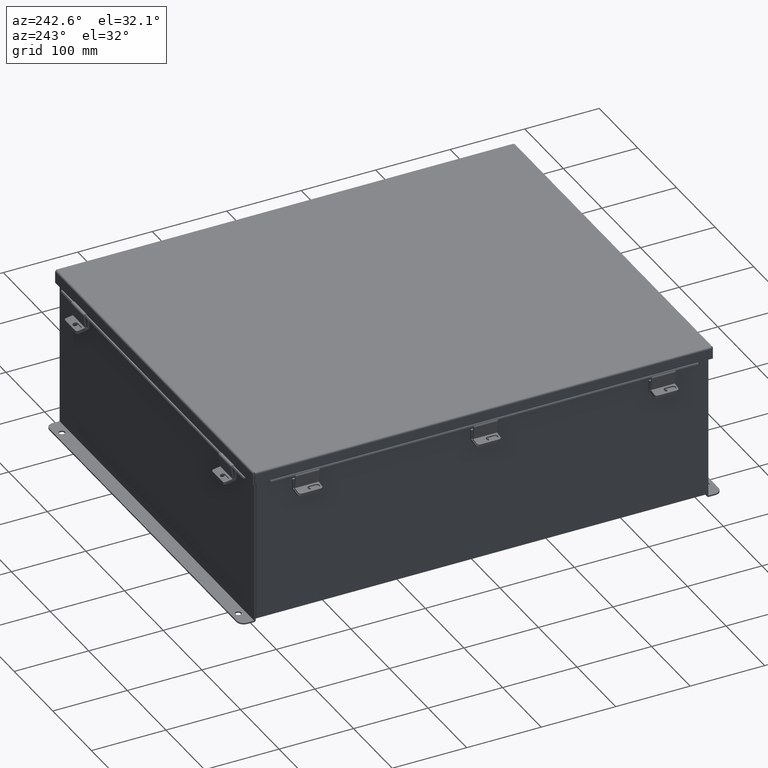
[diagram: clean part render]
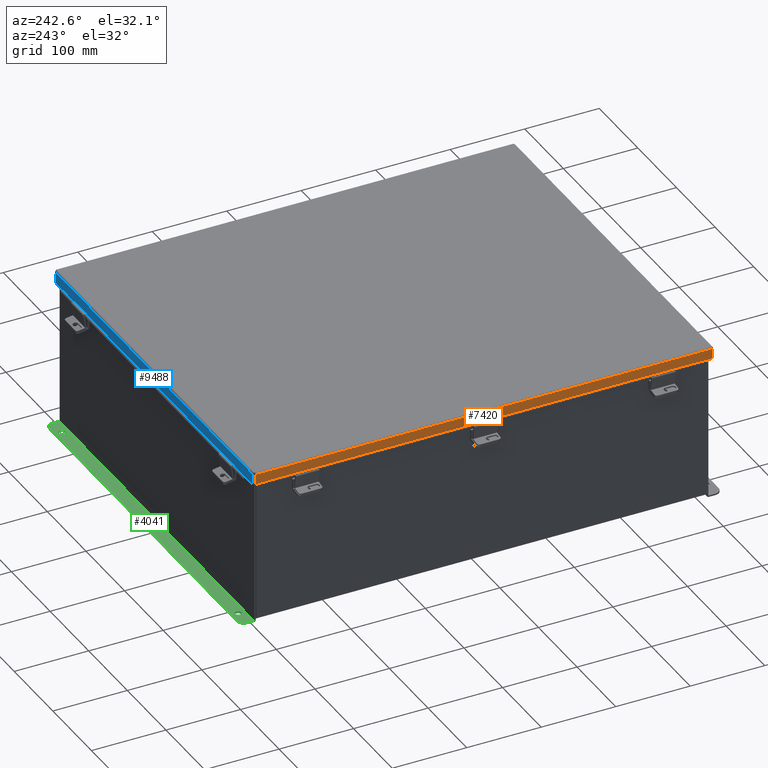
[diagram: same view with three faces highlighted in distinct colors, each labeled with its STEP entity id]
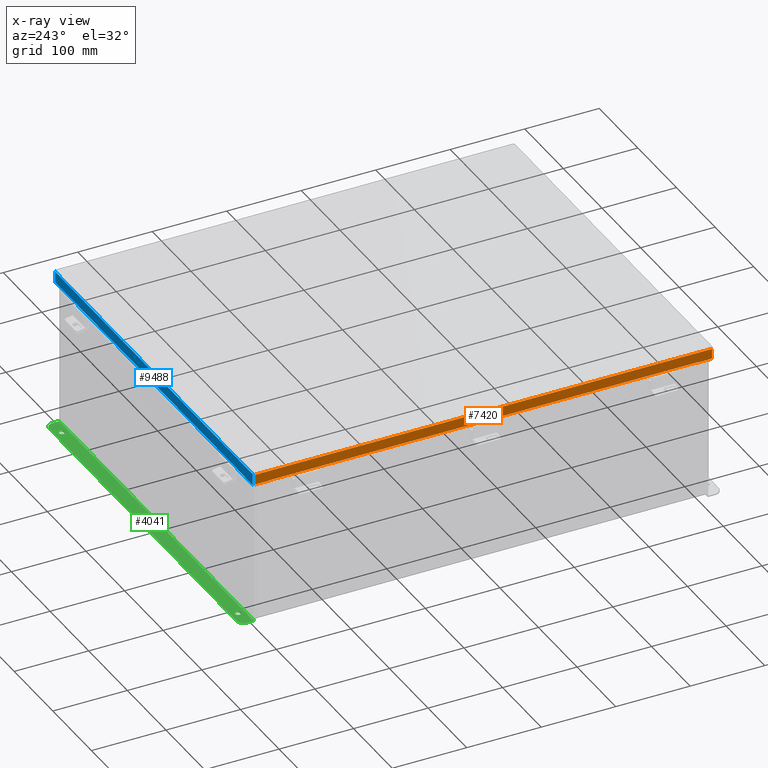
[diagram: x-ray of the same camera — body ghosted, the three highlighted faces saturated]
A machine part, auxiliary view with three faces highlighted in distinct colors.
The next image is the same camera in x-ray (body ghosted, the three faces saturated) — at least one of them is partly hidden behind the body in this view.
Their STEP definitions:

[orange] entity #7420 — the highlighted planar face has unit normal (1, -0, 0).
#184 = LINE ( 'NONE', #1909, #2034 ) ;
#223 = CARTESIAN_POINT ( 'NONE',  ( 10.15625000000004100, -11.32447893218813200, 0.5503000000000010100 ) ) ;
#281 = LINE ( 'NONE', #4419, #2343 ) ;
#532 = CARTESIAN_POINT ( 'NONE',  ( 10.15625000000004100, 11.32447893218813200, 0.5347115427318852600 ) ) ;
#750 = ORIENTED_EDGE ( 'NONE', *, *, #2070, .F. ) ;
#1243 = ORIENTED_EDGE ( 'NONE', *, *, #6297, .F. ) ;
#1266 = VERTEX_POINT ( 'NONE', #223 ) ;
#1651 = CARTESIAN_POINT ( 'NONE',  ( 10.15625000000003600, -12.07447893218813200, 0.01300000000000010700 ) ) ;
#1909 = CARTESIAN_POINT ( 'NONE',  ( 10.15625000000003600, -12.07447893218813200, 0.0000000000000000000 ) ) ;
#2005 = LINE ( 'NONE', #3491, #9948 ) ;
#2034 = VECTOR ( 'NONE', #7275, 39.37007874015748100 ) ;
#2070 = EDGE_CURVE ( 'NONE', #5102, #4244, #184, .T. ) ;
#2339 = ORIENTED_EDGE ( 'NONE', *, *, #3979, .F. ) ;
#2343 = VECTOR ( 'NONE', #8263, 39.37007874015748100 ) ;
#2357 = CARTESIAN_POINT ( 'NONE',  ( 10.15625000000003600, 12.07447893218813200, 0.01300000000000010700 ) ) ;
#2587 = VECTOR ( 'NONE', #5926, 39.37007874015748100 ) ;
#2625 = CARTESIAN_POINT ( 'NONE',  ( 10.15625000000003600, 12.07447893218813400, -4.043135030623109600E-014 ) ) ;
#3063 = VERTEX_POINT ( 'NONE', #3562 ) ;
#3284 = ORIENTED_EDGE ( 'NONE', *, *, #6700, .T. ) ;
#3298 = LINE ( 'NONE', #5876, #5134 ) ;
#3491 = CARTESIAN_POINT ( 'NONE',  ( 10.15625000000003900, -4.268512490100411300E-018, 0.5502999999999999000 ) ) ;
#3558 = VECTOR ( 'NONE', #5715, 39.37007874015748100 ) ;
#3562 = CARTESIAN_POINT ( 'NONE',  ( 10.15625000000004100, -11.32447893218812900, 0.5347115427318766000 ) ) ;
#3675 = PLANE ( 'NONE',  #5912 ) ;
#3702 = CARTESIAN_POINT ( 'NONE',  ( 10.15625000000003900, 0.0000000000000000000, -4.043135030623109600E-014 ) ) ;
#3740 = EDGE_CURVE ( 'NONE', #3903, #9373, #2005, .T. ) ;
#3790 = LINE ( 'NONE', #2625, #3558 ) ;
#3842 = LINE ( 'NONE', #8593, #7608 ) ;
#3857 = EDGE_CURVE ( 'NONE', #3063, #6337, #3298, .T. ) ;
#3903 = VERTEX_POINT ( 'NONE', #8177 ) ;
#3979 = EDGE_CURVE ( 'NONE', #9759, #5102, #6866, .T. ) ;
#4240 = ORIENTED_EDGE ( 'NONE', *, *, #3740, .T. ) ;
#4244 = VERTEX_POINT ( 'NONE', #5549 ) ;
#4388 = FACE_OUTER_BOUND ( 'NONE', #7583, .T. ) ;
#4419 = CARTESIAN_POINT ( 'NONE',  ( 10.15625000000003900, -4.268512490100411300E-018, 0.5502999999999999000 ) ) ;
#4472 = DIRECTION ( 'NONE',  ( 3.971430846686186800E-015, 1.846427556282924000E-029, 1.000000000000000000 ) ) ;
#4648 = ORIENTED_EDGE ( 'NONE', *, *, #3857, .F. ) ;
#4746 = DIRECTION ( 'NONE',  ( -2.803970088048211700E-013, 1.401985044024099800E-013, -1.000000000000000000 ) ) ;
#4827 = VECTOR ( 'NONE', #6712, 39.37007874015748100 ) ;
#5102 = VERTEX_POINT ( 'NONE', #1651 ) ;
#5134 = VECTOR ( 'NONE', #6649, 39.37007874015748100 ) ;
#5200 = CARTESIAN_POINT ( 'NONE',  ( 10.15625000000003600, -12.15624999999999800, 0.01300000000000010700 ) ) ;
#5549 = CARTESIAN_POINT ( 'NONE',  ( 10.15625000000004100, -12.07447893218813200, 0.5503000000000010100 ) ) ;
#5601 = ORIENTED_EDGE ( 'NONE', *, *, #9822, .F. ) ;
#5715 = DIRECTION ( 'NONE',  ( 3.971430846686186800E-015, 1.846427556282924300E-029, 1.000000000000000000 ) ) ;
#5876 = CARTESIAN_POINT ( 'NONE',  ( 10.15625000000004100, -11.32447893218813200, 0.5347115427318766000 ) ) ;
#5912 = AXIS2_PLACEMENT_3D ( 'NONE', #3702, #9085, #4472 ) ;
#5926 = DIRECTION ( 'NONE',  ( 0.0000000000000000000, 1.846427556282924300E-029, 1.000000000000000000 ) ) ;
#5965 = CARTESIAN_POINT ( 'NONE',  ( 10.15625000000004100, 11.32447893218813200, 0.5347115427318852600 ) ) ;
#6055 = ORIENTED_EDGE ( 'NONE', *, *, #6316, .T. ) ;
#6297 = EDGE_CURVE ( 'NONE', #6337, #9373, #8499, .T. ) ;
#6316 = EDGE_CURVE ( 'NONE', #1266, #4244, #281, .T. ) ;
#6337 = VERTEX_POINT ( 'NONE', #5965 ) ;
#6592 = CARTESIAN_POINT ( 'NONE',  ( 10.15625000000004100, 11.32447893218813200, 0.5503000000000085600 ) ) ;
#6649 = DIRECTION ( 'NONE',  ( 3.166671605124525800E-030, 1.000000000000000000, 1.853823127269377700E-029 ) ) ;
#6700 = EDGE_CURVE ( 'NONE', #9759, #3903, #3790, .T. ) ;
#6712 = DIRECTION ( 'NONE',  ( -3.166671605124525800E-030, -1.000000000000000000, -1.853823127269377700E-029 ) ) ;
#6866 = LINE ( 'NONE', #5200, #4827 ) ;
#7275 = DIRECTION ( 'NONE',  ( 3.971430846686186800E-015, 1.846427556282924300E-029, 1.000000000000000000 ) ) ;
#7420 = ADVANCED_FACE ( 'NONE', ( #4388 ), #3675, .F. ) ;
#7583 = EDGE_LOOP ( 'NONE', ( #5601, #6055, #750, #2339, #3284, #4240, #1243, #4648 ) ) ;
#7608 = VECTOR ( 'NONE', #4746, 39.37007874015748100 ) ;
#8177 = CARTESIAN_POINT ( 'NONE',  ( 10.15625000000004100, 12.07447893218813200, 0.5503000000000085600 ) ) ;
#8263 = DIRECTION ( 'NONE',  ( -3.166671605124525800E-030, -1.000000000000000000, -1.853823127269377700E-029 ) ) ;
#8499 = LINE ( 'NONE', #532, #2587 ) ;
#8593 = CARTESIAN_POINT ( 'NONE',  ( 10.15625000000004400, -11.32447893218813200, 0.5502999999999976800 ) ) ;
#8889 = DIRECTION ( 'NONE',  ( -3.166671605124525800E-030, -1.000000000000000000, -1.853823127269377700E-029 ) ) ;
#9085 = DIRECTION ( 'NONE',  ( -1.000000000000000000, -3.214874041279299500E-030, 3.971430846686186800E-015 ) ) ;
#9373 = VERTEX_POINT ( 'NONE', #6592 ) ;
#9759 = VERTEX_POINT ( 'NONE', #2357 ) ;
#9822 = EDGE_CURVE ( 'NONE', #1266, #3063, #3842, .T. ) ;
#9948 = VECTOR ( 'NONE', #8889, 39.37007874015748100 ) ;

[blue] entity #9488 — the highlighted planar face has unit normal (-0, -1, -0).
#115 = CARTESIAN_POINT ( 'NONE',  ( 10.07447893218817100, 12.15625000000000200, 0.6122999999999994000 ) ) ;
#373 = DIRECTION ( 'NONE',  ( 1.000000000000000000, 3.215538059845590000E-030, 3.362274453740340600E-018 ) ) ;
#524 = CARTESIAN_POINT ( 'NONE',  ( 10.15625000000003600, 12.15625000000000000, 0.01300000000000010700 ) ) ;
#722 = EDGE_CURVE ( 'NONE', #2580, #5334, #5359, .T. ) ;
#759 = LINE ( 'NONE', #4518, #2831 ) ;
#820 = VECTOR ( 'NONE', #7493, 39.37007874015748100 ) ;
#1016 = CARTESIAN_POINT ( 'NONE',  ( 9.324478932188171100, 12.15625000000000200, 0.6122999999999994000 ) ) ;
#1065 = LINE ( 'NONE', #524, #4689 ) ;
#1303 = DIRECTION ( 'NONE',  ( 1.000000000000000000, 3.215975411700707400E-030, -0.0000000000000000000 ) ) ;
#1318 = PLANE ( 'NONE',  #3149 ) ;
#1369 = ORIENTED_EDGE ( 'NONE', *, *, #5374, .T. ) ;
#1451 = EDGE_CURVE ( 'NONE', #8285, #1773, #8498, .T. ) ;
#1773 = VERTEX_POINT ( 'NONE', #115 ) ;
#2107 = DIRECTION ( 'NONE',  ( -3.347543324056399800E-030, -1.000000000000000000, 3.569293475308532400E-015 ) ) ;
#2242 = DIRECTION ( 'NONE',  ( -0.0000000000000000000, 3.569293475308532400E-015, 1.000000000000000000 ) ) ;
#2323 = ORIENTED_EDGE ( 'NONE', *, *, #6808, .T. ) ;
#2499 = CARTESIAN_POINT ( 'NONE',  ( 10.07447893218817100, 12.15625000000000000, 0.01300000000000010700 ) ) ;
#2549 = CARTESIAN_POINT ( 'NONE',  ( -9.324478932188164000, 12.15625000000000400, 0.5967115427318815400 ) ) ;
#2580 = VERTEX_POINT ( 'NONE', #4683 ) ;
#2586 = VECTOR ( 'NONE', #2242, 39.37007874015748100 ) ;
#2651 = LINE ( 'NONE', #2896, #820 ) ;
#2831 = VECTOR ( 'NONE', #9908, 39.37007874015748100 ) ;
#2896 = CARTESIAN_POINT ( 'NONE',  ( -2.134256245050205600E-018, 12.15625000000000200, 0.6122999999999994000 ) ) ;
#2986 = VERTEX_POINT ( 'NONE', #8887 ) ;
#3144 = ORIENTED_EDGE ( 'NONE', *, *, #722, .F. ) ;
#3149 = AXIS2_PLACEMENT_3D ( 'NONE', #5933, #2107, #7479 ) ;
#3310 = VECTOR ( 'NONE', #3504, 39.37007874015748100 ) ;
#3322 = DIRECTION ( 'NONE',  ( -7.009925220121077000E-014, -1.401985044024209900E-013, 1.000000000000000000 ) ) ;
#3361 = VECTOR ( 'NONE', #373, 39.37007874015748100 ) ;
#3403 = EDGE_CURVE ( 'NONE', #5334, #2986, #8509, .T. ) ;
#3434 = CARTESIAN_POINT ( 'NONE',  ( 9.324478932188171100, 12.15625000000000400, 0.5967115427318804300 ) ) ;
#3472 = CARTESIAN_POINT ( 'NONE',  ( -10.07447893218816600, 12.15625000000000200, 0.6123000000000005100 ) ) ;
#3504 = DIRECTION ( 'NONE',  ( -1.000000000000000000, -3.215975411700707400E-030, -0.0000000000000000000 ) ) ;
#3769 = VERTEX_POINT ( 'NONE', #8098 ) ;
#3827 = ORIENTED_EDGE ( 'NONE', *, *, #3403, .F. ) ;
#3951 = FACE_OUTER_BOUND ( 'NONE', #6467, .T. ) ;
#4267 = EDGE_CURVE ( 'NONE', #3769, #2580, #4706, .T. ) ;
#4392 = ORIENTED_EDGE ( 'NONE', *, *, #1451, .F. ) ;
#4413 = VECTOR ( 'NONE', #3322, 39.37007874015748100 ) ;
#4518 = CARTESIAN_POINT ( 'NONE',  ( -10.07447893218816600, 12.15625000000000000, -4.370956789862821100E-014 ) ) ;
#4683 = CARTESIAN_POINT ( 'NONE',  ( 9.324478932188171100, 12.15625000000000200, 0.5967115427318804300 ) ) ;
#4689 = VECTOR ( 'NONE', #1303, 39.37007874015748100 ) ;
#4706 = LINE ( 'NONE', #1016, #4956 ) ;
#4929 = VERTEX_POINT ( 'NONE', #5244 ) ;
#4956 = VECTOR ( 'NONE', #6411, 39.37007874015748100 ) ;
#5005 = CARTESIAN_POINT ( 'NONE',  ( -2.134256245050205600E-018, 12.15625000000000200, 0.6122999999999994000 ) ) ;
#5244 = CARTESIAN_POINT ( 'NONE',  ( -10.07447893218816600, 12.15625000000000000, 0.01300000000000010700 ) ) ;
#5315 = EDGE_CURVE ( 'NONE', #4929, #8285, #1065, .T. ) ;
#5334 = VERTEX_POINT ( 'NONE', #5918 ) ;
#5359 = LINE ( 'NONE', #3434, #3310 ) ;
#5374 = EDGE_CURVE ( 'NONE', #3769, #1773, #2651, .T. ) ;
#5918 = CARTESIAN_POINT ( 'NONE',  ( -9.324478932188164000, 12.15625000000000200, 0.5967115427318815400 ) ) ;
#5933 = CARTESIAN_POINT ( 'NONE',  ( 0.0000000000000000000, 12.15625000000000000, -4.370956789862821100E-014 ) ) ;
#6411 = DIRECTION ( 'NONE',  ( 7.009925220121354700E-014, 1.401985044024265100E-013, -1.000000000000000000 ) ) ;
#6467 = EDGE_LOOP ( 'NONE', ( #9819, #1369, #4392, #9392, #2323, #7765, #3827, #3144 ) ) ;
#6774 = VERTEX_POINT ( 'NONE', #3472 ) ;
#6808 = EDGE_CURVE ( 'NONE', #4929, #6774, #759, .T. ) ;
#6839 = CARTESIAN_POINT ( 'NONE',  ( 10.07447893218817100, 12.15625000000000000, 0.0000000000000000000 ) ) ;
#7479 = DIRECTION ( 'NONE',  ( 0.0000000000000000000, -3.569293475308532400E-015, -1.000000000000000000 ) ) ;
#7493 = DIRECTION ( 'NONE',  ( 1.000000000000000000, 3.215538059845590000E-030, 3.362274453740340600E-018 ) ) ;
#7765 = ORIENTED_EDGE ( 'NONE', *, *, #9329, .T. ) ;
#8098 = CARTESIAN_POINT ( 'NONE',  ( 9.324478932188171100, 12.15625000000000200, 0.6122999999999994000 ) ) ;
#8285 = VERTEX_POINT ( 'NONE', #2499 ) ;
#8498 = LINE ( 'NONE', #6839, #2586 ) ;
#8509 = LINE ( 'NONE', #2549, #4413 ) ;
#8887 = CARTESIAN_POINT ( 'NONE',  ( -9.324478932188165800, 12.15625000000000200, 0.6123000000000005100 ) ) ;
#9267 = LINE ( 'NONE', #5005, #3361 ) ;
#9329 = EDGE_CURVE ( 'NONE', #6774, #2986, #9267, .T. ) ;
#9392 = ORIENTED_EDGE ( 'NONE', *, *, #5315, .F. ) ;
#9488 = ADVANCED_FACE ( 'NONE', ( #3951 ), #1318, .F. ) ;
#9819 = ORIENTED_EDGE ( 'NONE', *, *, #4267, .F. ) ;
#9908 = DIRECTION ( 'NONE',  ( 0.0000000000000000000, 3.569293475308532400E-015, 1.000000000000000000 ) ) ;

[green] entity #4041 — the highlighted planar face has unit normal (0, 0, 1).
#32 = EDGE_CURVE ( 'NONE', #1859, #6474, #2026, .T. ) ;
#173 = VECTOR ( 'NONE', #4977, 39.37007874015748100 ) ;
#313 = CARTESIAN_POINT ( 'NONE',  ( -8.987800000000000000, 0.3628000000000008400, -4.112300000000002100 ) ) ;
#484 = LINE ( 'NONE', #3000, #8449 ) ;
#492 = FACE_OUTER_BOUND ( 'NONE', #768, .T. ) ;
#561 = VERTEX_POINT ( 'NONE', #6212 ) ;
#615 = CARTESIAN_POINT ( 'NONE',  ( 9.550299999999998200, 0.3628000000000008400, -4.112300000000002100 ) ) ;
#621 = CARTESIAN_POINT ( 'NONE',  ( 9.925299999999998200, 0.3628000000000008400, -4.112300000000002100 ) ) ;
#639 = VERTEX_POINT ( 'NONE', #4182 ) ;
#666 = DIRECTION ( 'NONE',  ( -0.0000000000000000000, -1.000000000000000000, 3.702694488566362300E-015 ) ) ;
#673 = DIRECTION ( 'NONE',  ( 0.0000000000000000000, 3.702694488566362300E-015, 1.000000000000000000 ) ) ;
#733 = CARTESIAN_POINT ( 'NONE',  ( -9.550300000000001800, 0.3628000000000008400, -4.112300000000002100 ) ) ;
#768 = EDGE_LOOP ( 'NONE', ( #2375, #4759, #1850, #4507, #6080, #2500 ) ) ;
#1092 = DIRECTION ( 'NONE',  ( 0.0000000000000000000, -1.000000000000000000, 3.502369222646487400E-015 ) ) ;
#1129 = CARTESIAN_POINT ( 'NONE',  ( -9.925300000000001800, 0.7378000000000011200, -4.112300000000003800 ) ) ;
#1203 = LINE ( 'NONE', #3106, #5298 ) ;
#1218 = CIRCLE ( 'NONE', #8445, 0.1560000000000001700 ) ;
#1310 = VERTEX_POINT ( 'NONE', #4886 ) ;
#1393 = DIRECTION ( 'NONE',  ( 0.0000000000000000000, -1.000000000000000000, 4.370956789862820400E-015 ) ) ;
#1514 = DIRECTION ( 'NONE',  ( 0.0000000000000000000, -1.000000000000000000, 4.370956789862820400E-015 ) ) ;
#1606 = EDGE_CURVE ( 'NONE', #4144, #6474, #3679, .T. ) ;
#1804 = EDGE_CURVE ( 'NONE', #8573, #639, #6311, .T. ) ;
#1850 = ORIENTED_EDGE ( 'NONE', *, *, #2502, .F. ) ;
#1859 = VERTEX_POINT ( 'NONE', #3314 ) ;
#1944 = CARTESIAN_POINT ( 'NONE',  ( -8.987800000000000000, 0.3628000000000008400, -4.112300000000002100 ) ) ;
#2026 = LINE ( 'NONE', #1129, #173 ) ;
#2147 = AXIS2_PLACEMENT_3D ( 'NONE', #7893, #3280, #8676 ) ;
#2189 = CARTESIAN_POINT ( 'NONE',  ( 9.925299999999998200, 0.7378000000000011200, -4.112300000000003800 ) ) ;
#2375 = ORIENTED_EDGE ( 'NONE', *, *, #4562, .F. ) ;
#2500 = ORIENTED_EDGE ( 'NONE', *, *, #5013, .F. ) ;
#2502 = EDGE_CURVE ( 'NONE', #4144, #8642, #2746, .T. ) ;
#2538 = FACE_BOUND ( 'NONE', #7338, .T. ) ;
#2723 = DIRECTION ( 'NONE',  ( 0.0000000000000000000, -1.000000000000000000, 3.502369222646487400E-015 ) ) ;
#2746 = LINE ( 'NONE', #2189, #6819 ) ;
#2894 = CARTESIAN_POINT ( 'NONE',  ( -8.987800000000000000, 0.5188000000000010400, -4.112300000000002100 ) ) ;
#2961 = CIRCLE ( 'NONE', #4794, 0.3750000000000000600 ) ;
#3000 = CARTESIAN_POINT ( 'NONE',  ( 9.925299999999998200, 0.0000000000000000000, -4.112300000000001200 ) ) ;
#3090 = CARTESIAN_POINT ( 'NONE',  ( 8.987799999999998200, 0.3628000000000008400, -4.112300000000002100 ) ) ;
#3106 = CARTESIAN_POINT ( 'NONE',  ( 9.925299999999998200, 0.01300000000000010700, -4.112300000000001200 ) ) ;
#3280 = DIRECTION ( 'NONE',  ( -0.0000000000000000000, -3.702694488566362300E-015, -1.000000000000000000 ) ) ;
#3314 = CARTESIAN_POINT ( 'NONE',  ( -9.925300000000000000, 0.01299999999999792100, -4.112300000000001200 ) ) ;
#3359 = AXIS2_PLACEMENT_3D ( 'NONE', #733, #6136, #1514 ) ;
#3372 = AXIS2_PLACEMENT_3D ( 'NONE', #8372, #673, #6071 ) ;
#3679 = CIRCLE ( 'NONE', #3359, 0.3750000000000000600 ) ;
#3867 = DIRECTION ( 'NONE',  ( 0.0000000000000000000, -1.000000000000000000, 3.502369222646487400E-015 ) ) ;
#4041 = ADVANCED_FACE ( 'NONE', ( #8461, #2538, #492 ), #7573, .T. ) ;
#4144 = VERTEX_POINT ( 'NONE', #6246 ) ;
#4182 = CARTESIAN_POINT ( 'NONE',  ( 8.987799999999998200, 0.5188000000000010400, -4.112300000000002100 ) ) ;
#4507 = ORIENTED_EDGE ( 'NONE', *, *, #1606, .T. ) ;
#4562 = EDGE_CURVE ( 'NONE', #7452, #561, #484, .T. ) ;
#4759 = ORIENTED_EDGE ( 'NONE', *, *, #5998, .T. ) ;
#4794 = AXIS2_PLACEMENT_3D ( 'NONE', #615, #6012, #1393 ) ;
#4886 = CARTESIAN_POINT ( 'NONE',  ( -8.987800000000000000, 0.2068000000000006800, -4.112300000000001200 ) ) ;
#4915 = ORIENTED_EDGE ( 'NONE', *, *, #9336, .T. ) ;
#4977 = DIRECTION ( 'NONE',  ( -0.0000000000000000000, 1.000000000000000000, -3.702694488566362300E-015 ) ) ;
#5013 = EDGE_CURVE ( 'NONE', #561, #1859, #1203, .T. ) ;
#5298 = VECTOR ( 'NONE', #8507, 39.37007874015748100 ) ;
#5650 = EDGE_LOOP ( 'NONE', ( #4915, #8351 ) ) ;
#5708 = DIRECTION ( 'NONE',  ( -0.0000000000000000000, -3.702694488566362300E-015, -1.000000000000000000 ) ) ;
#5998 = EDGE_CURVE ( 'NONE', #7452, #8642, #2961, .T. ) ;
#6012 = DIRECTION ( 'NONE',  ( 0.0000000000000000000, 3.702694488566362300E-015, 1.000000000000000000 ) ) ;
#6071 = DIRECTION ( 'NONE',  ( 0.0000000000000000000, -1.000000000000000000, 3.702694488566362300E-015 ) ) ;
#6080 = ORIENTED_EDGE ( 'NONE', *, *, #32, .F. ) ;
#6136 = DIRECTION ( 'NONE',  ( 0.0000000000000000000, 3.702694488566362300E-015, 1.000000000000000000 ) ) ;
#6177 = AXIS2_PLACEMENT_3D ( 'NONE', #313, #5708, #1092 ) ;
#6212 = CARTESIAN_POINT ( 'NONE',  ( 9.925299999999998200, 0.01300000000000010700, -4.112300000000001200 ) ) ;
#6246 = CARTESIAN_POINT ( 'NONE',  ( -9.550300000000001800, 0.7378000000000011200, -4.112300000000003800 ) ) ;
#6311 = CIRCLE ( 'NONE', #2147, 0.1560000000000001700 ) ;
#6445 = AXIS2_PLACEMENT_3D ( 'NONE', #1944, #7317, #2723 ) ;
#6474 = VERTEX_POINT ( 'NONE', #6879 ) ;
#6796 = DIRECTION ( 'NONE',  ( 1.000000000000000000, -0.0000000000000000000, -0.0000000000000000000 ) ) ;
#6819 = VECTOR ( 'NONE', #6796, 39.37007874015748100 ) ;
#6879 = CARTESIAN_POINT ( 'NONE',  ( -9.925300000000001800, 0.3628000000000008400, -4.112300000000002100 ) ) ;
#7317 = DIRECTION ( 'NONE',  ( -0.0000000000000000000, -3.702694488566362300E-015, -1.000000000000000000 ) ) ;
#7338 = EDGE_LOOP ( 'NONE', ( #9668, #9235 ) ) ;
#7381 = VERTEX_POINT ( 'NONE', #2894 ) ;
#7417 = CARTESIAN_POINT ( 'NONE',  ( 8.987799999999998200, 0.2068000000000006800, -4.112300000000001200 ) ) ;
#7452 = VERTEX_POINT ( 'NONE', #621 ) ;
#7573 = PLANE ( 'NONE',  #3372 ) ;
#7709 = CIRCLE ( 'NONE', #6177, 0.1560000000000001700 ) ;
#7893 = CARTESIAN_POINT ( 'NONE',  ( 8.987799999999998200, 0.3628000000000008400, -4.112300000000002100 ) ) ;
#7924 = EDGE_CURVE ( 'NONE', #639, #8573, #1218, .T. ) ;
#8130 = EDGE_CURVE ( 'NONE', #1310, #7381, #7709, .T. ) ;
#8351 = ORIENTED_EDGE ( 'NONE', *, *, #8130, .T. ) ;
#8372 = CARTESIAN_POINT ( 'NONE',  ( 0.0000000000000000000, -1.529834876451987200E-014, -4.112300000000001200 ) ) ;
#8445 = AXIS2_PLACEMENT_3D ( 'NONE', #3090, #8485, #3867 ) ;
#8449 = VECTOR ( 'NONE', #666, 39.37007874015748100 ) ;
#8461 = FACE_BOUND ( 'NONE', #5650, .T. ) ;
#8485 = DIRECTION ( 'NONE',  ( -0.0000000000000000000, -3.702694488566362300E-015, -1.000000000000000000 ) ) ;
#8507 = DIRECTION ( 'NONE',  ( -1.000000000000000000, -2.752408485047568600E-017, 1.019132772786892100E-031 ) ) ;
#8573 = VERTEX_POINT ( 'NONE', #7417 ) ;
#8642 = VERTEX_POINT ( 'NONE', #9832 ) ;
#8676 = DIRECTION ( 'NONE',  ( 0.0000000000000000000, -1.000000000000000000, 3.502369222646487400E-015 ) ) ;
#9235 = ORIENTED_EDGE ( 'NONE', *, *, #1804, .T. ) ;
#9336 = EDGE_CURVE ( 'NONE', #7381, #1310, #9776, .T. ) ;
#9668 = ORIENTED_EDGE ( 'NONE', *, *, #7924, .T. ) ;
#9776 = CIRCLE ( 'NONE', #6445, 0.1560000000000001700 ) ;
#9832 = CARTESIAN_POINT ( 'NONE',  ( 9.550299999999998200, 0.7378000000000011200, -4.112300000000003800 ) ) ;